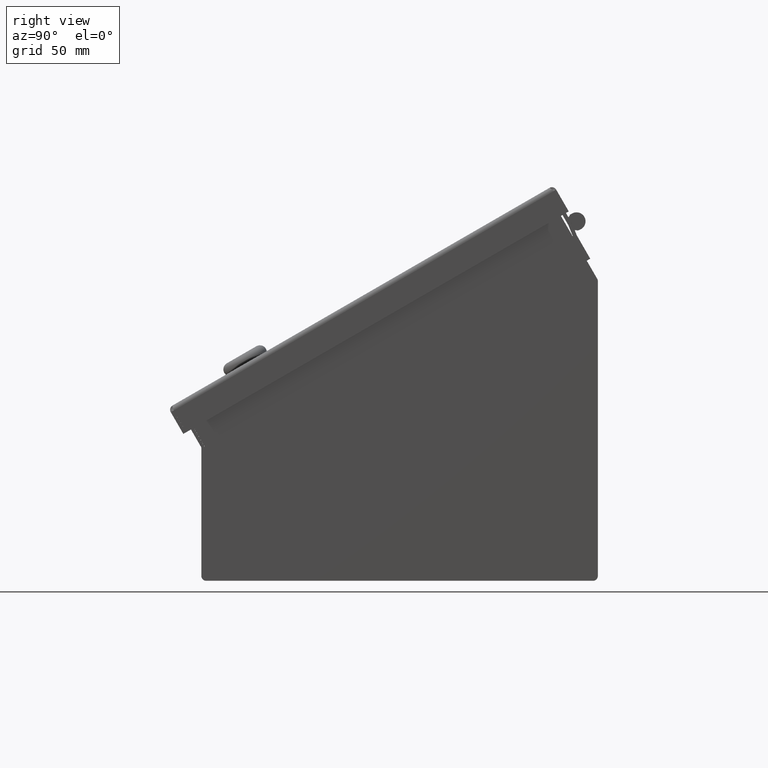
[diagram: clean part render]
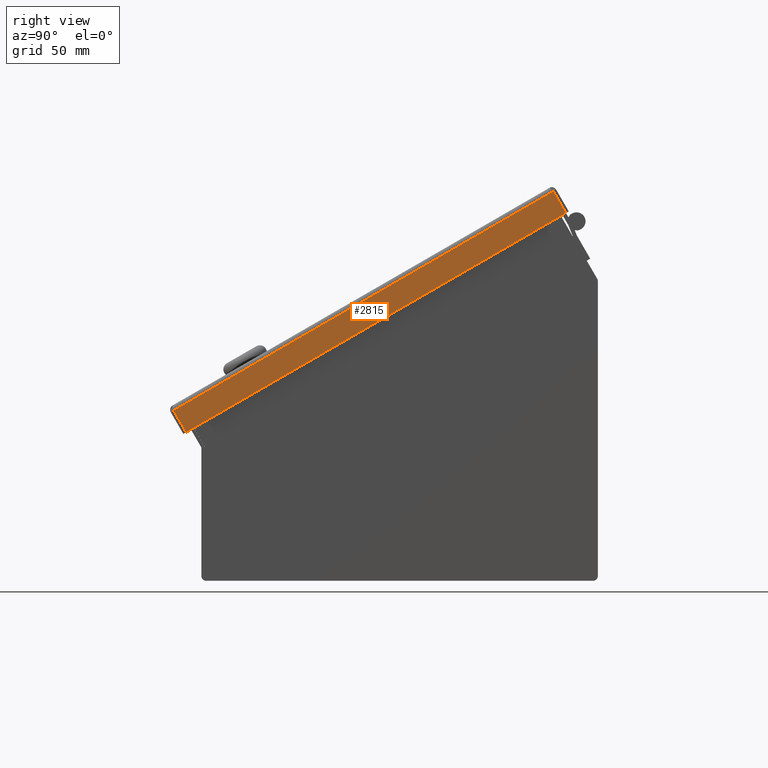
[diagram: same view with one face highlighted and labeled with its STEP entity id]
A machine part, right view. The second image highlights one B-rep face of the part: STEP entity #2815.
In plain terms, the highlighted planar face has unit normal (1, 0, -0).
Its self-contained STEP definition (entity closure, byte-faithful):
#2815 = ADVANCED_FACE( '', ( #6887 ), #6888, .T. );
#6887 = FACE_OUTER_BOUND( '', #16700, .T. );
#6888 = PLANE( '', #16701 );
#16700 = EDGE_LOOP( '', ( #48194, #48195, #48196, #48197 ) );
#16701 = AXIS2_PLACEMENT_3D( '', #48198, #48199, #48200 );
#48194 = ORIENTED_EDGE( '', *, *, #66119, .F. );
#48195 = ORIENTED_EDGE( '', *, *, #66120, .F. );
#48196 = ORIENTED_EDGE( '', *, *, #66121, .T. );
#48197 = ORIENTED_EDGE( '', *, *, #66122, .T. );
#48198 = CARTESIAN_POINT( '', ( 105.587800000000, -728.129100000000, 1.52400000000000 ) );
#48199 = DIRECTION( '', ( 1.00000000000000, 0.000000000000000, 8.03107034792327E-015 ) );
#48200 = DIRECTION( '', ( 8.03107034792327E-015, 0.000000000000000, -1.00000000000000 ) );
#66119 = EDGE_CURVE( '', #73097, #73098, #73099, .T. );
#66120 = EDGE_CURVE( '', #73100, #73097, #73101, .T. );
#66121 = EDGE_CURVE( '', #73100, #73102, #73103, .T. );
#66122 = EDGE_CURVE( '', #73102, #73098, #73104, .T. );
#73097 = VERTEX_POINT( '', #86869 );
#73098 = VERTEX_POINT( '', #86870 );
#73099 = LINE( '', #86871, #86872 );
#73100 = VERTEX_POINT( '', #86873 );
#73101 = LINE( '', #86874, #86875 );
#73102 = VERTEX_POINT( '', #86876 );
#73103 = LINE( '', #86877, #86878 );
#73104 = LINE( '', #86879, #86880 );
#86869 = CARTESIAN_POINT( '', ( 105.587800000000, 104.327671572875, -0.812800000000061 ) );
#86870 = CARTESIAN_POINT( '', ( 105.587800000000, 104.327671572875, -12.7508000000000 ) );
#86871 = CARTESIAN_POINT( '', ( 105.587800000000, 104.327671572875, -0.812799999999981 ) );
#86872 = VECTOR( '', #104440, 1000.00000000000 );
#86873 = CARTESIAN_POINT( '', ( 105.587800000000, -104.327671572875, -0.812800000000000 ) );
#86874 = CARTESIAN_POINT( '', ( 105.587800000000, -728.129100000000, -0.812799999999981 ) );
#86875 = VECTOR( '', #104441, 1000.00000000000 );
#86876 = CARTESIAN_POINT( '', ( 105.587800000000, -104.327671572875, -12.7508000000000 ) );
#86877 = CARTESIAN_POINT( '', ( 105.587800000000, -104.327671572875, -0.812799999999981 ) );
#86878 = VECTOR( '', #104442, 1000.00000000000 );
#86879 = CARTESIAN_POINT( '', ( 105.587800000000, -728.129100000000, -12.7508000000000 ) );
#86880 = VECTOR( '', #104443, 1000.00000000000 );
#104440 = DIRECTION( '', ( 0.000000000000000, 0.000000000000000, -1.00000000000000 ) );
#104441 = DIRECTION( '', ( 0.000000000000000, 1.00000000000000, 0.000000000000000 ) );
#104442 = DIRECTION( '', ( 0.000000000000000, 0.000000000000000, -1.00000000000000 ) );
#104443 = DIRECTION( '', ( 0.000000000000000, 1.00000000000000, 0.000000000000000 ) );